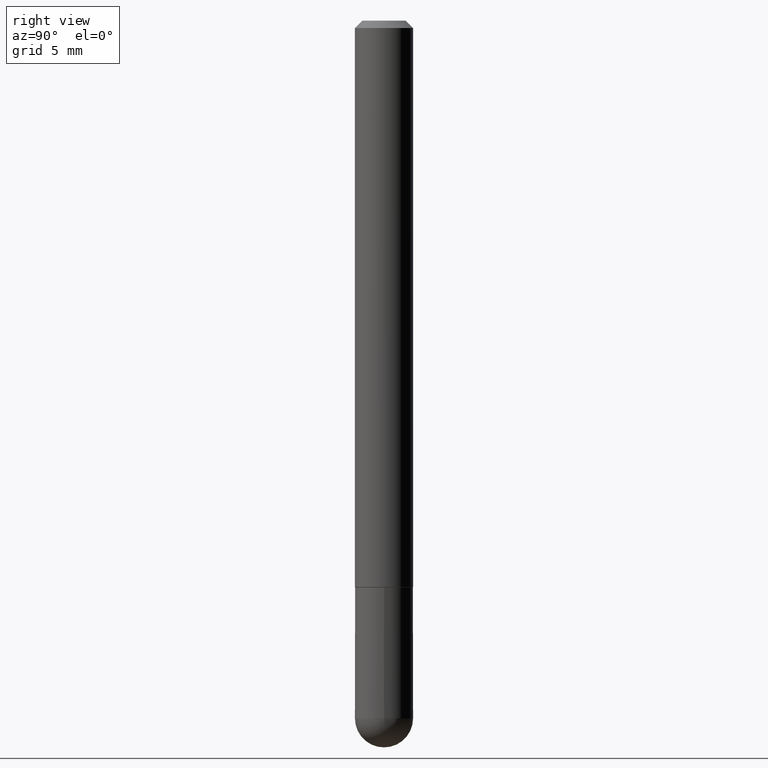
[diagram: clean part render]
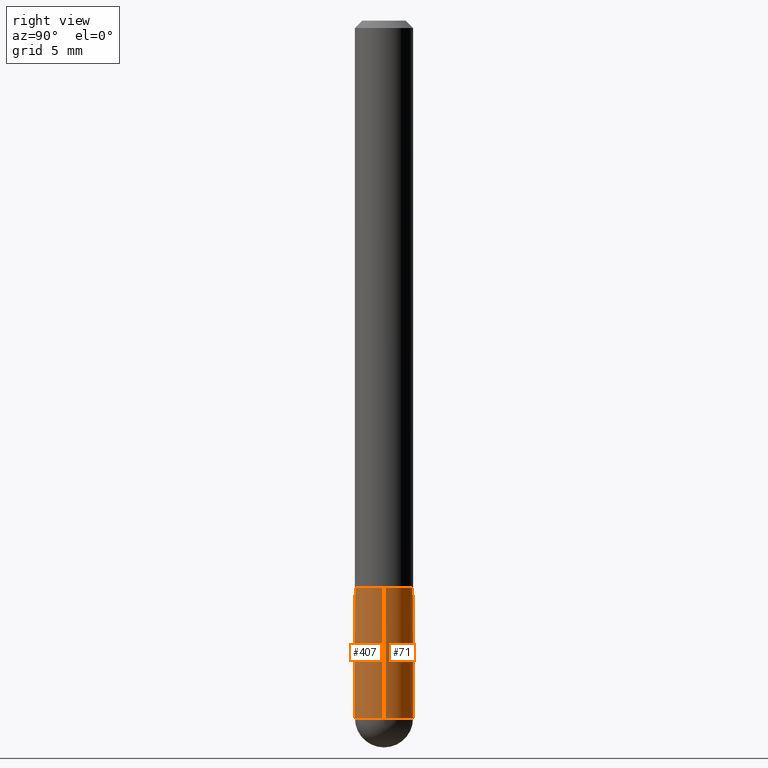
[diagram: same view with one multi-face feature highlighted, each face labeled with its STEP entity id]
A machine part, right view. The highlighted faces form ONE feature: a constant-radius fillet chain: 2 tangent blend faces with common blend radius 2.0002 mm. The faces share edges in the B-rep.
Their STEP definitions:
[1] entity #71 (Cylinder):
#14 = AXIS2_PLACEMENT_3D ( 'NONE', #219, #34, #214 ) ;
#34 = DIRECTION ( 'NONE',  ( -2.445468806185136597E-29, 3.491481338843145583E-15, 1.000000000000000000 ) ) ;
#35 = LINE ( 'NONE', #220, #306 ) ;
#36 = EDGE_CURVE ( 'NONE', #83, #210, #85, .T. ) ;
#59 = EDGE_LOOP ( 'NONE', ( #154, #258, #86, #271, #324 ) ) ;
#70 = CARTESIAN_POINT ( 'NONE',  ( 4.621324676488362597E-29, -6.598026860078835823E-15, -1.889750000000000263 ) ) ;
#71 = ADVANCED_FACE ( 'NONE', ( #266 ), #200, .T. ) ;
#81 = CARTESIAN_POINT ( 'NONE',  ( 0.000000000000000000, 0.000000000000000000, 0.000000000000000000 ) ) ;
#83 = VERTEX_POINT ( 'NONE', #325 ) ;
#85 = LINE ( 'NONE', #156, #281 ) ;
#86 = ORIENTED_EDGE ( 'NONE', *, *, #392, .F. ) ;
#91 = CIRCLE ( 'NONE', #315, 0.07875000000000000056 ) ;
#98 = DIRECTION ( 'NONE',  ( 1.000000000000000000, -6.982962677686261977E-15, 0.000000000000000000 ) ) ;
#103 = AXIS2_PLACEMENT_3D ( 'NONE', #81, #383, #294 ) ;
#154 = ORIENTED_EDGE ( 'NONE', *, *, #183, .T. ) ;
#156 = CARTESIAN_POINT ( 'NONE',  ( 0.07874999999999997280, -5.499083108677933457E-16, 3.839989210939298316E-30 ) ) ;
#183 = EDGE_CURVE ( 'NONE', #245, #381, #344, .T. ) ;
#187 = DIRECTION ( 'NONE',  ( -2.445468806185136597E-29, 3.491481338843145583E-15, 1.000000000000000000 ) ) ;
#188 = DIRECTION ( 'NONE',  ( 1.000000000000000000, -6.982962677686264344E-15, 0.000000000000000000 ) ) ;
#200 = CYLINDRICAL_SURFACE ( 'NONE', #103, 0.07874999999999997280 ) ;
#209 = DIRECTION ( 'NONE',  ( -2.445468806185136877E-29, 3.491481338843145188E-15, 1.000000000000000000 ) ) ;
#210 = VERTEX_POINT ( 'NONE', #256 ) ;
#214 = DIRECTION ( 'NONE',  ( 1.000000000000000000, -6.982962677686264344E-15, 0.000000000000000000 ) ) ;
#219 = CARTESIAN_POINT ( 'NONE',  ( 4.621324676488362597E-29, -6.598026860078835823E-15, -1.889750000000000263 ) ) ;
#220 = CARTESIAN_POINT ( 'NONE',  ( -0.07874999999999997280, 5.595524044110787031E-16, -3.873661383575737091E-30 ) ) ;
#245 = VERTEX_POINT ( 'NONE', #287 ) ;
#256 = CARTESIAN_POINT ( 'NONE',  ( 0.07875000000000000056, -5.910728758527558708E-15, -1.535399999999999876 ) ) ;
#258 = ORIENTED_EDGE ( 'NONE', *, *, #331, .T. ) ;
#259 = DIRECTION ( 'NONE',  ( -2.445468806185136597E-29, 3.491481338843145583E-15, 1.000000000000000000 ) ) ;
#265 = EDGE_CURVE ( 'NONE', #83, #245, #304, .T. ) ;
#266 = FACE_OUTER_BOUND ( 'NONE', #59, .T. ) ;
#268 = VERTEX_POINT ( 'NONE', #367 ) ;
#271 = ORIENTED_EDGE ( 'NONE', *, *, #36, .F. ) ;
#281 = VECTOR ( 'NONE', #209, 39.37007874015748143 ) ;
#287 = CARTESIAN_POINT ( 'NONE',  ( 5.499083108678389024E-16, 0.07874999999999328371, -1.889750000000000485 ) ) ;
#294 = DIRECTION ( 'NONE',  ( 1.000000000000000000, -6.982962677686267499E-15, 4.876176775795935793E-29 ) ) ;
#304 = CIRCLE ( 'NONE', #14, 0.07874999999999997280 ) ;
#306 = VECTOR ( 'NONE', #406, 39.37007874015748143 ) ;
#315 = AXIS2_PLACEMENT_3D ( 'NONE', #372, #259, #98 ) ;
#324 = ORIENTED_EDGE ( 'NONE', *, *, #265, .T. ) ;
#325 = CARTESIAN_POINT ( 'NONE',  ( 0.07874999999999997280, -6.529331964737094333E-15, -1.889750000000000263 ) ) ;
#331 = EDGE_CURVE ( 'NONE', #381, #268, #35, .T. ) ;
#344 = CIRCLE ( 'NONE', #405, 0.07874999999999997280 ) ;
#367 = CARTESIAN_POINT ( 'NONE',  ( -0.07875000000000000056, -5.419871249458221397E-15, -1.535399999999999876 ) ) ;
#372 = CARTESIAN_POINT ( 'NONE',  ( 3.754772805016658760E-29, -5.360820447659765363E-15, -1.535399999999999876 ) ) ;
#381 = VERTEX_POINT ( 'NONE', #409 ) ;
#383 = DIRECTION ( 'NONE',  ( -2.445468806185136597E-29, 3.491481338843145583E-15, 1.000000000000000000 ) ) ;
#392 = EDGE_CURVE ( 'NONE', #210, #268, #91, .T. ) ;
#405 = AXIS2_PLACEMENT_3D ( 'NONE', #70, #187, #188 ) ;
#406 = DIRECTION ( 'NONE',  ( -2.445468806185136877E-29, 3.491481338843145188E-15, 1.000000000000000000 ) ) ;
#409 = CARTESIAN_POINT ( 'NONE',  ( -0.07874999999999997280, -5.419871249458221397E-15, -1.889750000000000263 ) ) ;
[2] entity #407 (Cylinder):
#2 = CYLINDRICAL_SURFACE ( 'NONE', #323, 0.07874999999999997280 ) ;
#5 = CARTESIAN_POINT ( 'NONE',  ( -5.595524044110351185E-16, -0.07875000000000693945, -1.889750000000000041 ) ) ;
#35 = LINE ( 'NONE', #220, #306 ) ;
#36 = EDGE_CURVE ( 'NONE', #83, #210, #85, .T. ) ;
#39 = AXIS2_PLACEMENT_3D ( 'NONE', #138, #160, #129 ) ;
#41 = CARTESIAN_POINT ( 'NONE',  ( 4.621324676488362597E-29, -6.598026860078835823E-15, -1.889750000000000263 ) ) ;
#48 = ORIENTED_EDGE ( 'NONE', *, *, #36, .T. ) ;
#57 = AXIS2_PLACEMENT_3D ( 'NONE', #68, #136, #379 ) ;
#68 = CARTESIAN_POINT ( 'NONE',  ( 4.621324676488362597E-29, -6.598026860078835823E-15, -1.889750000000000263 ) ) ;
#75 = FACE_OUTER_BOUND ( 'NONE', #378, .T. ) ;
#83 = VERTEX_POINT ( 'NONE', #325 ) ;
#85 = LINE ( 'NONE', #156, #281 ) ;
#90 = VERTEX_POINT ( 'NONE', #5 ) ;
#100 = DIRECTION ( 'NONE',  ( 1.000000000000000000, -6.982962677686267499E-15, 4.876176775795935793E-29 ) ) ;
#102 = DIRECTION ( 'NONE',  ( -2.445468806185136597E-29, 3.491481338843145583E-15, 1.000000000000000000 ) ) ;
#113 = ORIENTED_EDGE ( 'NONE', *, *, #235, .T. ) ;
#120 = EDGE_CURVE ( 'NONE', #381, #90, #222, .T. ) ;
#129 = DIRECTION ( 'NONE',  ( 1.000000000000000000, -6.982962677686261977E-15, 0.000000000000000000 ) ) ;
#136 = DIRECTION ( 'NONE',  ( -2.445468806185136597E-29, 3.491481338843145583E-15, 1.000000000000000000 ) ) ;
#138 = CARTESIAN_POINT ( 'NONE',  ( 3.754772805016658760E-29, -5.360820447659765363E-15, -1.535399999999999876 ) ) ;
#156 = CARTESIAN_POINT ( 'NONE',  ( 0.07874999999999997280, -5.499083108677933457E-16, 3.839989210939298316E-30 ) ) ;
#160 = DIRECTION ( 'NONE',  ( -2.445468806185136597E-29, 3.491481338843145583E-15, 1.000000000000000000 ) ) ;
#202 = DIRECTION ( 'NONE',  ( -2.445468806185136597E-29, 3.491481338843145583E-15, 1.000000000000000000 ) ) ;
#209 = DIRECTION ( 'NONE',  ( -2.445468806185136877E-29, 3.491481338843145188E-15, 1.000000000000000000 ) ) ;
#210 = VERTEX_POINT ( 'NONE', #256 ) ;
#213 = CIRCLE ( 'NONE', #39, 0.07875000000000000056 ) ;
#220 = CARTESIAN_POINT ( 'NONE',  ( -0.07874999999999997280, 5.595524044110787031E-16, -3.873661383575737091E-30 ) ) ;
#222 = CIRCLE ( 'NONE', #251, 0.07874999999999997280 ) ;
#235 = EDGE_CURVE ( 'NONE', #90, #83, #241, .T. ) ;
#236 = ORIENTED_EDGE ( 'NONE', *, *, #373, .F. ) ;
#241 = CIRCLE ( 'NONE', #57, 0.07874999999999997280 ) ;
#251 = AXIS2_PLACEMENT_3D ( 'NONE', #41, #202, #316 ) ;
#256 = CARTESIAN_POINT ( 'NONE',  ( 0.07875000000000000056, -5.910728758527558708E-15, -1.535399999999999876 ) ) ;
#268 = VERTEX_POINT ( 'NONE', #367 ) ;
#281 = VECTOR ( 'NONE', #209, 39.37007874015748143 ) ;
#306 = VECTOR ( 'NONE', #406, 39.37007874015748143 ) ;
#316 = DIRECTION ( 'NONE',  ( 1.000000000000000000, -6.982962677686264344E-15, 0.000000000000000000 ) ) ;
#322 = ORIENTED_EDGE ( 'NONE', *, *, #331, .F. ) ;
#323 = AXIS2_PLACEMENT_3D ( 'NONE', #377, #102, #100 ) ;
#325 = CARTESIAN_POINT ( 'NONE',  ( 0.07874999999999997280, -6.529331964737094333E-15, -1.889750000000000263 ) ) ;
#331 = EDGE_CURVE ( 'NONE', #381, #268, #35, .T. ) ;
#367 = CARTESIAN_POINT ( 'NONE',  ( -0.07875000000000000056, -5.419871249458221397E-15, -1.535399999999999876 ) ) ;
#373 = EDGE_CURVE ( 'NONE', #268, #210, #213, .T. ) ;
#377 = CARTESIAN_POINT ( 'NONE',  ( 0.000000000000000000, 0.000000000000000000, 0.000000000000000000 ) ) ;
#378 = EDGE_LOOP ( 'NONE', ( #322, #389, #113, #48, #236 ) ) ;
#379 = DIRECTION ( 'NONE',  ( 1.000000000000000000, -6.982962677686264344E-15, 0.000000000000000000 ) ) ;
#381 = VERTEX_POINT ( 'NONE', #409 ) ;
#389 = ORIENTED_EDGE ( 'NONE', *, *, #120, .T. ) ;
#406 = DIRECTION ( 'NONE',  ( -2.445468806185136877E-29, 3.491481338843145188E-15, 1.000000000000000000 ) ) ;
#407 = ADVANCED_FACE ( 'NONE', ( #75 ), #2, .T. ) ;
#409 = CARTESIAN_POINT ( 'NONE',  ( -0.07874999999999997280, -5.419871249458221397E-15, -1.889750000000000263 ) ) ;